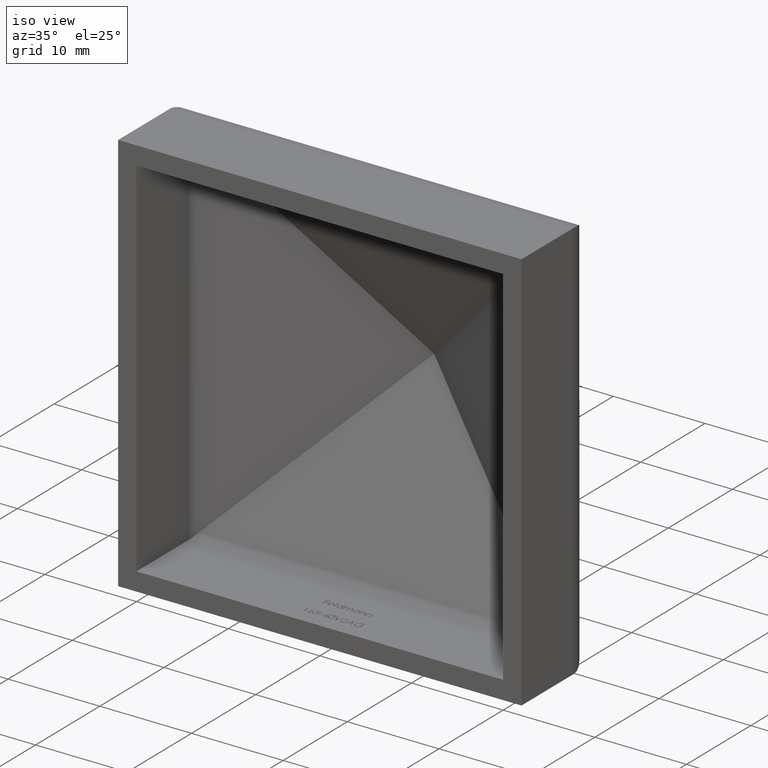
[diagram: clean part render]
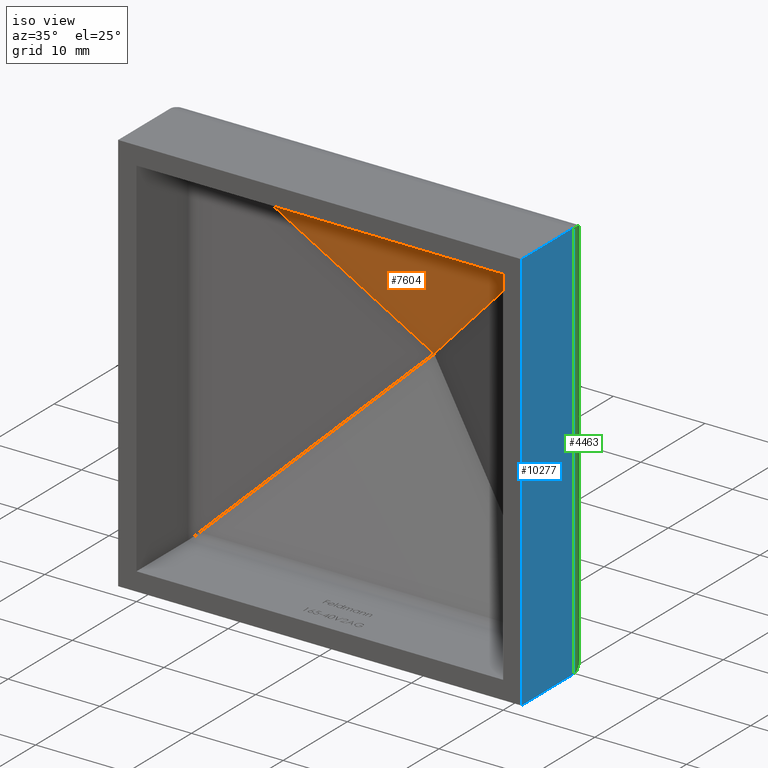
[diagram: same view with three faces highlighted in distinct colors, each labeled with its STEP entity id]
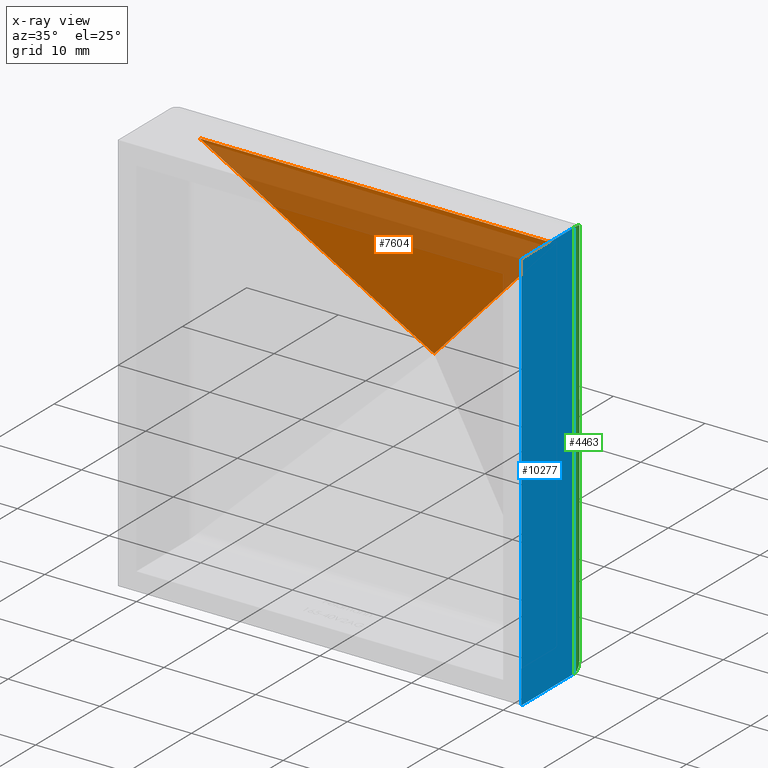
[diagram: x-ray of the same camera — body ghosted, the three highlighted faces saturated]
A machine part, iso view with three faces highlighted in distinct colors.
The next image is the same camera in x-ray (body ghosted, the three faces saturated) — at least one of them is partly hidden behind the body in this view.
Their STEP definitions:

[orange] entity #7604 — the highlighted planar face has unit normal (0, 0.9102, 0.4141).
#1719 = CARTESIAN_POINT ( 'NONE',  ( -19.41414115568450400, 8.979261153773027400, 19.41414115568450400 ) ) ;
#1893 = DIRECTION ( 'NONE',  ( -0.6731268672750945200, 0.3062685767505953800, -0.6731268672750939700 ) ) ;
#2108 = DIRECTION ( 'NONE',  ( 0.0000000000000000000, -0.4141411556844960500, 0.9102126691978693600 ) ) ;
#3010 = DIRECTION ( 'NONE',  ( 1.839156185943195500E-016, 0.9102126691978693600, 0.4141411556844960500 ) ) ;
#5095 = EDGE_CURVE ( 'NONE', #8418, #5577, #9944, .T. ) ;
#5136 = VECTOR ( 'NONE', #8528, 1000.000000000000000 ) ;
#5158 = VECTOR ( 'NONE', #8505, 1000.000000000000000 ) ;
#5477 = EDGE_LOOP ( 'NONE', ( #8332, #9067, #11847 ) ) ;
#5577 = VERTEX_POINT ( 'NONE', #11124 ) ;
#5602 = CARTESIAN_POINT ( 'NONE',  ( -0.6494029320328054100, 17.51710141577313000, 0.6494029320328019700 ) ) ;
#5611 = LINE ( 'NONE', #5671, #5136 ) ;
#5671 = CARTESIAN_POINT ( 'NONE',  ( -22.00000000000002100, 8.979261153773029100, 19.41414115568450400 ) ) ;
#5778 = CARTESIAN_POINT ( 'NONE',  ( -10.39853353767581400, 22.54384443125556500, -10.39853353767579900 ) ) ;
#6777 = VERTEX_POINT ( 'NONE', #1719 ) ;
#6790 = AXIS2_PLACEMENT_3D ( 'NONE', #7881, #3010, #2108 ) ;
#7604 = ADVANCED_FACE ( 'NONE', ( #8201 ), #7840, .F. ) ;
#7840 = PLANE ( 'NONE',  #6790 ) ;
#7881 = CARTESIAN_POINT ( 'NONE',  ( -22.00000000000002100, 18.17059592852405100, -0.7868681958005318000 ) ) ;
#8201 = FACE_OUTER_BOUND ( 'NONE', #5477, .T. ) ;
#8332 = ORIENTED_EDGE ( 'NONE', *, *, #5095, .F. ) ;
#8418 = VERTEX_POINT ( 'NONE', #8532 ) ;
#8505 = DIRECTION ( 'NONE',  ( -0.6731268672750941900, -0.3062685767505952700, 0.6731268672750944100 ) ) ;
#8528 = DIRECTION ( 'NONE',  ( 1.000000000000000000, -1.674023261079129100E-016, -7.616702683308050400E-017 ) ) ;
#8532 = CARTESIAN_POINT ( 'NONE',  ( 19.41414115568450800, 8.979261153773027400, 19.41414115568449000 ) ) ;
#9067 = ORIENTED_EDGE ( 'NONE', *, *, #11579, .F. ) ;
#9944 = LINE ( 'NONE', #5778, #11000 ) ;
#10710 = LINE ( 'NONE', #5602, #5158 ) ;
#10981 = EDGE_CURVE ( 'NONE', #5577, #6777, #10710, .T. ) ;
#11000 = VECTOR ( 'NONE', #1893, 1000.000000000000000 ) ;
#11124 = CARTESIAN_POINT ( 'NONE',  ( 0.0000000000000000000, 17.81257574817719900, 1.734723475976807100E-015 ) ) ;
#11579 = EDGE_CURVE ( 'NONE', #6777, #8418, #5611, .T. ) ;
#11847 = ORIENTED_EDGE ( 'NONE', *, *, #10981, .F. ) ;

[blue] entity #10277 — the highlighted planar face has unit normal (-1, 0, 0).
#511 = VERTEX_POINT ( 'NONE', #6853 ) ;
#513 = EDGE_CURVE ( 'NONE', #3284, #7569, #2257, .T. ) ;
#1195 = VECTOR ( 'NONE', #1858, 1000.000000000000000 ) ;
#1547 = ORIENTED_EDGE ( 'NONE', *, *, #7803, .T. ) ;
#1858 = DIRECTION ( 'NONE',  ( -0.0000000000000000000, -1.000000000000000000, -0.0000000000000000000 ) ) ;
#1933 = EDGE_CURVE ( 'NONE', #511, #8977, #3765, .T. ) ;
#2257 = LINE ( 'NONE', #4897, #4235 ) ;
#2752 = DIRECTION ( 'NONE',  ( -2.365532012695646200E-016, -0.0000000000000000000, -1.000000000000000000 ) ) ;
#2785 = ORIENTED_EDGE ( 'NONE', *, *, #513, .F. ) ;
#2791 = CARTESIAN_POINT ( 'NONE',  ( 21.99999999999998900, 0.0000000000000000000, -22.00000000000000000 ) ) ;
#3046 = DIRECTION ( 'NONE',  ( 2.365532012695646200E-016, 0.0000000000000000000, 1.000000000000000000 ) ) ;
#3284 = VERTEX_POINT ( 'NONE', #9184 ) ;
#3765 = LINE ( 'NONE', #3940, #1195 ) ;
#3940 = CARTESIAN_POINT ( 'NONE',  ( 22.00000000000000000, 25.00000000000000000, 22.00000000000000000 ) ) ;
#4235 = VECTOR ( 'NONE', #11761, 1000.000000000000000 ) ;
#4897 = CARTESIAN_POINT ( 'NONE',  ( 21.99999999999998900, 25.00000000000000000, -22.00000000000000000 ) ) ;
#5503 = ORIENTED_EDGE ( 'NONE', *, *, #1933, .T. ) ;
#6793 = VECTOR ( 'NONE', #10132, 1000.000000000000000 ) ;
#6853 = CARTESIAN_POINT ( 'NONE',  ( 22.00000000000001100, 8.069048484575164400, 21.99999999999999300 ) ) ;
#7569 = VERTEX_POINT ( 'NONE', #8904 ) ;
#7803 = EDGE_CURVE ( 'NONE', #3284, #511, #8682, .T. ) ;
#7927 = PLANE ( 'NONE',  #9981 ) ;
#8226 = EDGE_LOOP ( 'NONE', ( #1547, #5503, #11975, #2785 ) ) ;
#8682 = LINE ( 'NONE', #11973, #6793 ) ;
#8904 = CARTESIAN_POINT ( 'NONE',  ( 21.99999999999998900, 0.0000000000000000000, -22.00000000000000000 ) ) ;
#8942 = DIRECTION ( 'NONE',  ( -1.000000000000000000, 0.0000000000000000000, 2.365532012695646200E-016 ) ) ;
#8977 = VERTEX_POINT ( 'NONE', #11658 ) ;
#9184 = CARTESIAN_POINT ( 'NONE',  ( 22.00000000000000400, 8.069048484575164400, -22.00000000000001100 ) ) ;
#9839 = CARTESIAN_POINT ( 'NONE',  ( 21.99999999999998900, 25.00000000000000000, -22.00000000000000000 ) ) ;
#9981 = AXIS2_PLACEMENT_3D ( 'NONE', #9839, #8942, #3046 ) ;
#10028 = FACE_OUTER_BOUND ( 'NONE', #8226, .T. ) ;
#10089 = LINE ( 'NONE', #2791, #12051 ) ;
#10132 = DIRECTION ( 'NONE',  ( -0.0000000000000000000, -0.0000000000000000000, 1.000000000000000000 ) ) ;
#10277 = ADVANCED_FACE ( 'NONE', ( #10028 ), #7927, .F. ) ;
#11658 = CARTESIAN_POINT ( 'NONE',  ( 22.00000000000000000, 0.0000000000000000000, 22.00000000000000000 ) ) ;
#11761 = DIRECTION ( 'NONE',  ( -0.0000000000000000000, -1.000000000000000000, -0.0000000000000000000 ) ) ;
#11900 = EDGE_CURVE ( 'NONE', #8977, #7569, #10089, .T. ) ;
#11973 = CARTESIAN_POINT ( 'NONE',  ( 22.00000000000000400, 8.069048484575164400, -22.00000000000000000 ) ) ;
#11975 = ORIENTED_EDGE ( 'NONE', *, *, #11900, .T. ) ;
#12051 = VECTOR ( 'NONE', #2752, 1000.000000000000000 ) ;

[green] entity #4463 — the highlighted cylindrical surface (edge-blend (fillet) strip) has radius 3 mm, axis along (-0, -0, 1).
#511 = VERTEX_POINT ( 'NONE', #6853 ) ;
#557 = LINE ( 'NONE', #2331, #10237 ) ;
#1336 = ORIENTED_EDGE ( 'NONE', *, *, #6260, .F. ) ;
#1960 = DIRECTION ( 'NONE',  ( -0.0000000000000000000, -0.0000000000000000000, 1.000000000000000000 ) ) ;
#2076 = ORIENTED_EDGE ( 'NONE', *, *, #7803, .F. ) ;
#2241 = CARTESIAN_POINT ( 'NONE',  ( 20.24242346705348100, 10.79968649216877500, 20.24242346705347700 ) ) ;
#2272 = CARTESIAN_POINT ( 'NONE',  ( 20.24242346705348100, 10.79968649216877500, 20.24242346705347700 ) ) ;
#2331 = CARTESIAN_POINT ( 'NONE',  ( 20.24242346705348400, 10.79968649216877500, -22.00000000000000000 ) ) ;
#3284 = VERTEX_POINT ( 'NONE', #9184 ) ;
#4000 =( BOUNDED_CURVE ( )  B_SPLINE_CURVE ( 3, ( #5764, #9679, #8720, #5881 ),
 .UNSPECIFIED., .F., .F. ) 
 B_SPLINE_CURVE_WITH_KNOTS ( ( 4, 4 ),
 ( 1.997795362548792300, 3.141592653589793100 ),
 .UNSPECIFIED. ) 
 CURVE ( )  GEOMETRIC_REPRESENTATION_ITEM ( )  RATIONAL_B_SPLINE_CURVE ( ( 1.000000000000000000, 0.8939165922272380700, 0.8939165922272380700, 1.000000000000000000 ) ) 
 REPRESENTATION_ITEM ( '' )  );
#4463 = ADVANCED_FACE ( 'NONE', ( #7763 ), #5645, .T. ) ;
#4577 = CARTESIAN_POINT ( 'NONE',  ( 22.00000000000001100, 8.069048484575164400, 21.99999999999999300 ) ) ;
#4656 = ORIENTED_EDGE ( 'NONE', *, *, #5509, .F. ) ;
#5509 = EDGE_CURVE ( 'NONE', #511, #10744, #6602, .T. ) ;
#5645 = CYLINDRICAL_SURFACE ( 'NONE', #11575, 2.999999999999999100 ) ;
#5706 = DIRECTION ( 'NONE',  ( 1.000000000000000000, 0.0000000000000000000, 0.0000000000000000000 ) ) ;
#5764 = CARTESIAN_POINT ( 'NONE',  ( 20.24242346705348800, 10.79968649216877100, -20.24242346705349500 ) ) ;
#5881 = CARTESIAN_POINT ( 'NONE',  ( 22.00000000000000400, 8.069048484575164400, -22.00000000000001100 ) ) ;
#6192 = CARTESIAN_POINT ( 'NONE',  ( 22.00000000000000000, 9.279965814777055400, 22.00000000000000000 ) ) ;
#6260 = EDGE_CURVE ( 'NONE', #6750, #3284, #4000, .T. ) ;
#6602 =( BOUNDED_CURVE ( )  B_SPLINE_CURVE ( 3, ( #4577, #6192, #7104, #2272 ),
 .UNSPECIFIED., .F., .F. ) 
 B_SPLINE_CURVE_WITH_KNOTS ( ( 4, 4 ),
 ( 0.0000000000000000000, 1.143797291041004600 ),
 .UNSPECIFIED. ) 
 CURVE ( )  GEOMETRIC_REPRESENTATION_ITEM ( )  RATIONAL_B_SPLINE_CURVE ( ( 1.000000000000000000, 0.8939165922272375200, 0.8939165922272375200, 1.000000000000000000 ) ) 
 REPRESENTATION_ITEM ( '' )  );
#6750 = VERTEX_POINT ( 'NONE', #10244 ) ;
#6793 = VECTOR ( 'NONE', #10132, 1000.000000000000000 ) ;
#6814 = ORIENTED_EDGE ( 'NONE', *, *, #8030, .T. ) ;
#6853 = CARTESIAN_POINT ( 'NONE',  ( 22.00000000000001100, 8.069048484575164400, 21.99999999999999300 ) ) ;
#7104 = CARTESIAN_POINT ( 'NONE',  ( 21.34461576235450800, 10.29819578960057700, 21.34461576235450800 ) ) ;
#7763 = FACE_OUTER_BOUND ( 'NONE', #9878, .T. ) ;
#7803 = EDGE_CURVE ( 'NONE', #3284, #511, #8682, .T. ) ;
#8030 = EDGE_CURVE ( 'NONE', #6750, #10744, #557, .T. ) ;
#8682 = LINE ( 'NONE', #11973, #6793 ) ;
#8720 = CARTESIAN_POINT ( 'NONE',  ( 21.99999999999998900, 9.279965814777050100, -22.00000000000001100 ) ) ;
#8840 = CARTESIAN_POINT ( 'NONE',  ( 19.00000000000000000, 8.069048484575164400, -22.00000000000000000 ) ) ;
#9184 = CARTESIAN_POINT ( 'NONE',  ( 22.00000000000000400, 8.069048484575164400, -22.00000000000001100 ) ) ;
#9679 = CARTESIAN_POINT ( 'NONE',  ( 21.34461576235449700, 10.29819578960057300, -21.34461576235452200 ) ) ;
#9878 = EDGE_LOOP ( 'NONE', ( #1336, #6814, #4656, #2076 ) ) ;
#10132 = DIRECTION ( 'NONE',  ( -0.0000000000000000000, -0.0000000000000000000, 1.000000000000000000 ) ) ;
#10237 = VECTOR ( 'NONE', #10271, 1000.000000000000000 ) ;
#10244 = CARTESIAN_POINT ( 'NONE',  ( 20.24242346705348800, 10.79968649216877100, -20.24242346705349500 ) ) ;
#10271 = DIRECTION ( 'NONE',  ( -0.0000000000000000000, -0.0000000000000000000, 1.000000000000000000 ) ) ;
#10744 = VERTEX_POINT ( 'NONE', #2241 ) ;
#11575 = AXIS2_PLACEMENT_3D ( 'NONE', #8840, #1960, #5706 ) ;
#11973 = CARTESIAN_POINT ( 'NONE',  ( 22.00000000000000400, 8.069048484575164400, -22.00000000000000000 ) ) ;